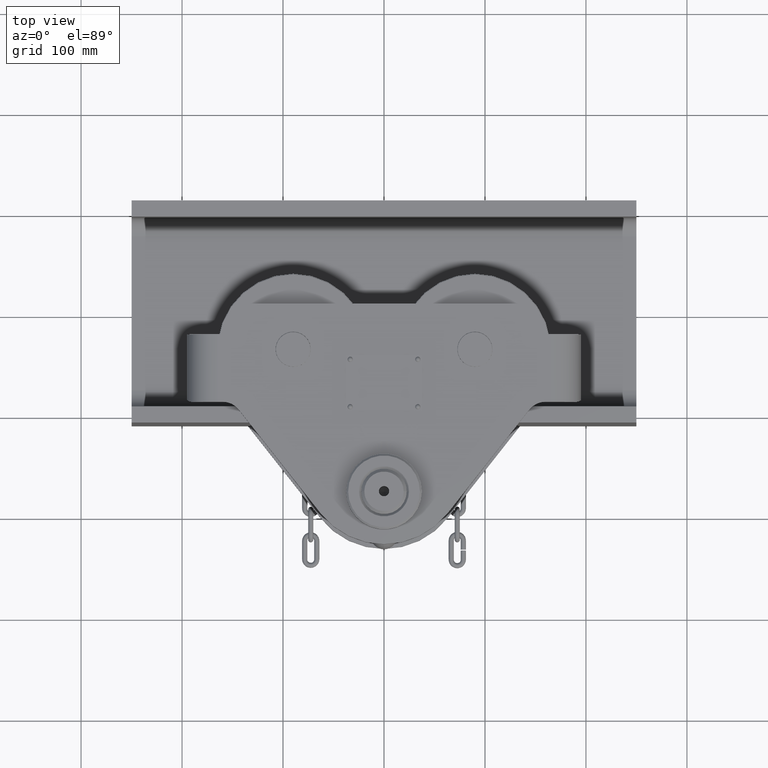
[diagram: clean part render]
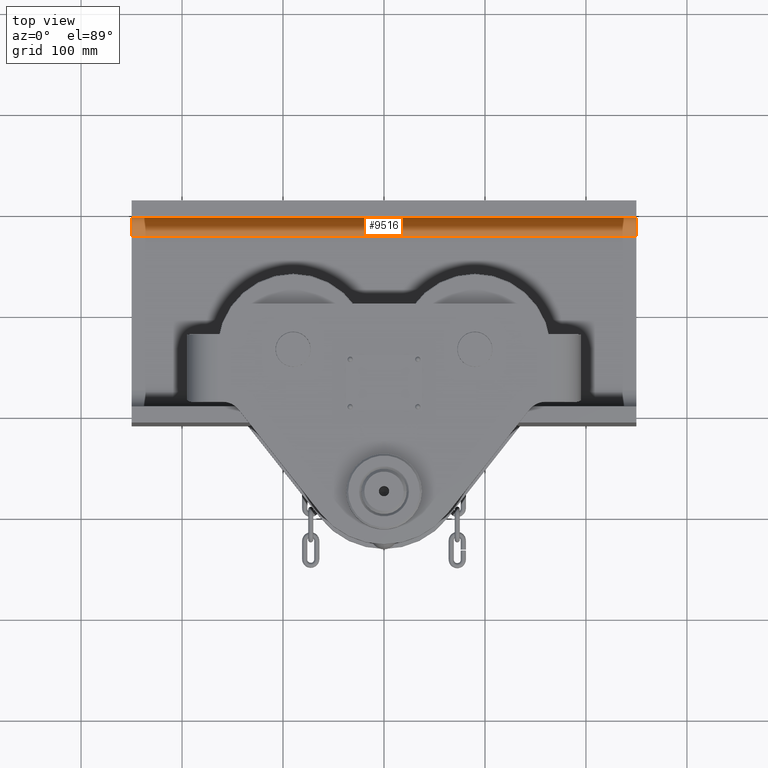
[diagram: same view with one face highlighted and labeled with its STEP entity id]
A machine part, top view. The second image highlights one B-rep face of the part: STEP entity #9516.
In plain terms, the highlighted cylindrical surface (edge-blend (fillet) strip) has radius 18 mm, axis along (1, 0, 0).
Its self-contained STEP definition (entity closure, byte-faithful):
#3057 = DIRECTION ( 'NONE',  ( 1.000000000000000000, 0.0000000000000000000, 7.703719777548941700E-034 ) ) ;
#3316 = CARTESIAN_POINT ( 'NONE',  ( 249.9999999999998900, 94.00000000000008500, 22.75000000000008200 ) ) ;
#3548 = CYLINDRICAL_SURFACE ( 'NONE', #96958, 18.00000000000002500 ) ;
#4112 = DIRECTION ( 'NONE',  ( 0.0000000000000000000, 0.0000000000000000000, -1.000000000000000000 ) ) ;
#5457 = VERTEX_POINT ( 'NONE', #64409 ) ;
#8835 = DIRECTION ( 'NONE',  ( 1.000000000000000000, 0.0000000000000000000, 7.703719777548941700E-034 ) ) ;
#9484 = ORIENTED_EDGE ( 'NONE', *, *, #25465, .T. ) ;
#9516 = ADVANCED_FACE ( 'NONE', ( #78861 ), #3548, .F. ) ;
#10855 = EDGE_CURVE ( 'NONE', #72702, #23813, #18141, .T. ) ;
#10859 = ORIENTED_EDGE ( 'NONE', *, *, #10855, .F. ) ;
#14154 = ORIENTED_EDGE ( 'NONE', *, *, #101947, .T. ) ;
#15806 = CARTESIAN_POINT ( 'NONE',  ( 249.9999999999998900, 76.00000000000004300, 4.750000000000047100 ) ) ;
#18141 = LINE ( 'NONE', #98503, #52928 ) ;
#21973 = DIRECTION ( 'NONE',  ( 1.000000000000000000, 0.0000000000000000000, 7.703719777548941700E-034 ) ) ;
#23332 = AXIS2_PLACEMENT_3D ( 'NONE', #75348, #21973, #4112 ) ;
#23813 = VERTEX_POINT ( 'NONE', #3316 ) ;
#25465 = EDGE_CURVE ( 'NONE', #5457, #34610, #112275, .T. ) ;
#30064 = VECTOR ( 'NONE', #8835, 1000.000000000000000 ) ;
#32692 = EDGE_CURVE ( 'NONE', #5457, #72702, #113897, .T. ) ;
#34610 = VERTEX_POINT ( 'NONE', #15806 ) ;
#38939 = DIRECTION ( 'NONE',  ( 1.000000000000000000, 0.0000000000000000000, 7.703719777548941700E-034 ) ) ;
#39700 = ORIENTED_EDGE ( 'NONE', *, *, #32692, .F. ) ;
#43810 = EDGE_LOOP ( 'NONE', ( #14154, #10859, #39700, #9484 ) ) ;
#44546 = CARTESIAN_POINT ( 'NONE',  ( -250.0000000000002300, 76.00000000000004300, 4.750000000000047100 ) ) ;
#46530 = CARTESIAN_POINT ( 'NONE',  ( -250.0000000000002300, 94.00000000000008500, 22.75000000000008200 ) ) ;
#52928 = VECTOR ( 'NONE', #80718, 1000.000000000000000 ) ;
#64409 = CARTESIAN_POINT ( 'NONE',  ( -250.0000000000002300, 76.00000000000004300, 4.750000000000047100 ) ) ;
#72094 = CIRCLE ( 'NONE', #84841, 18.00000000000002500 ) ;
#72702 = VERTEX_POINT ( 'NONE', #46530 ) ;
#74105 = DIRECTION ( 'NONE',  ( 0.0000000000000000000, 0.0000000000000000000, -1.000000000000000000 ) ) ;
#75348 = CARTESIAN_POINT ( 'NONE',  ( -250.0000000000002300, 76.00000000000004300, 22.75000000000008200 ) ) ;
#78861 = FACE_OUTER_BOUND ( 'NONE', #43810, .T. ) ;
#80718 = DIRECTION ( 'NONE',  ( 1.000000000000000000, 0.0000000000000000000, 7.703719777548941700E-034 ) ) ;
#83460 = CARTESIAN_POINT ( 'NONE',  ( 249.9999999999998900, 76.00000000000004300, 22.75000000000008200 ) ) ;
#84841 = AXIS2_PLACEMENT_3D ( 'NONE', #83460, #38939, #74105 ) ;
#89802 = DIRECTION ( 'NONE',  ( 0.0000000000000000000, 0.0000000000000000000, -1.000000000000000000 ) ) ;
#96958 = AXIS2_PLACEMENT_3D ( 'NONE', #110366, #3057, #89802 ) ;
#98503 = CARTESIAN_POINT ( 'NONE',  ( -250.0000000000002300, 94.00000000000008500, 22.75000000000008200 ) ) ;
#101947 = EDGE_CURVE ( 'NONE', #34610, #23813, #72094, .T. ) ;
#110366 = CARTESIAN_POINT ( 'NONE',  ( -250.0000000000002300, 76.00000000000004300, 22.75000000000008200 ) ) ;
#112275 = LINE ( 'NONE', #44546, #30064 ) ;
#113897 = CIRCLE ( 'NONE', #23332, 18.00000000000002500 ) ;